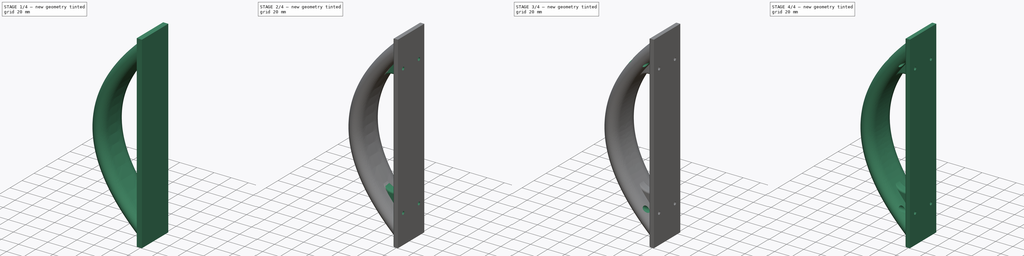
[diagram: build sequence overview — one tinted view per stage of 4, left to right]
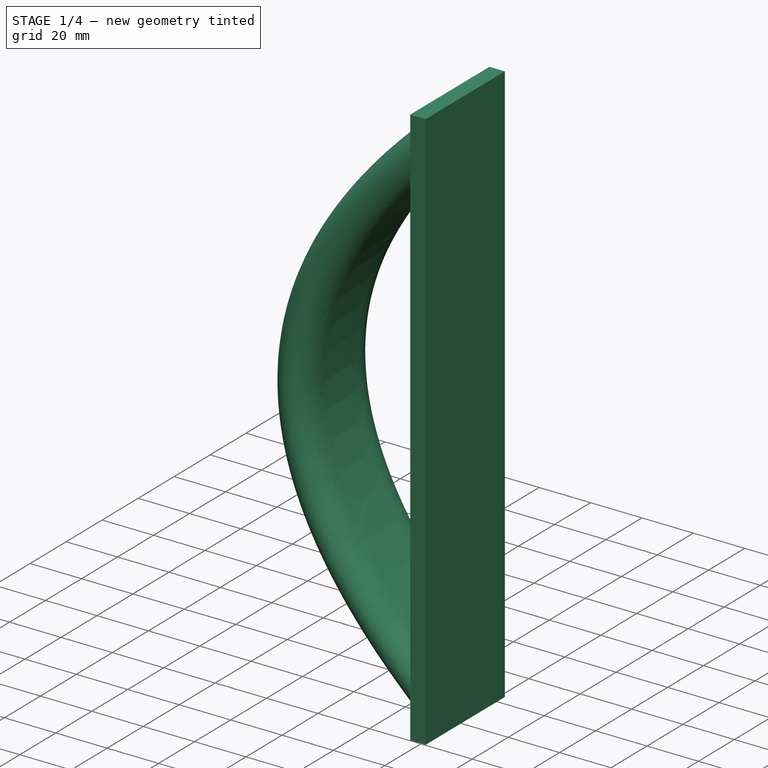
[diagram: stage 1 of 4 — iso view after this stage's code; geometry added in this stage tinted green]
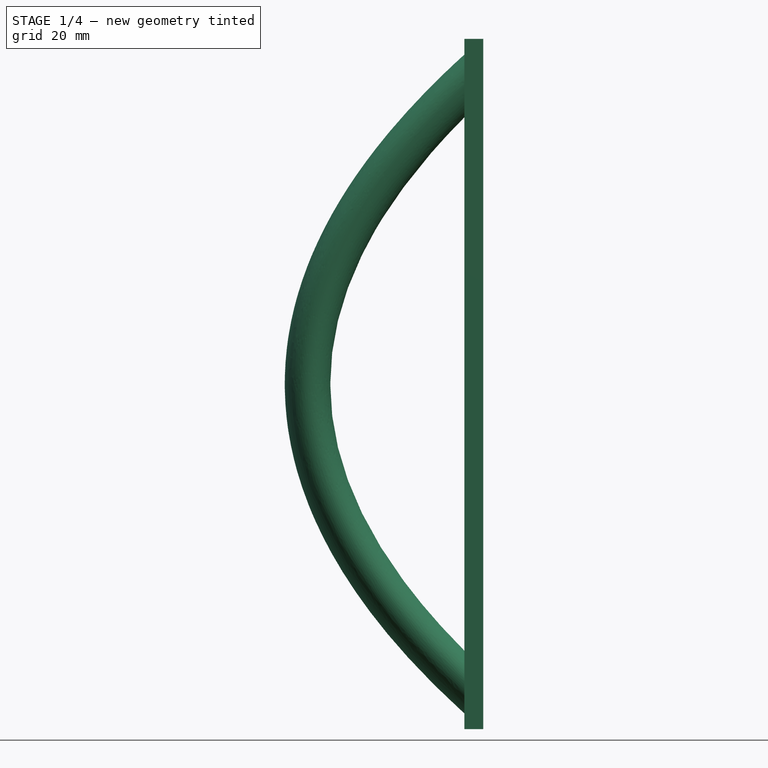
[diagram: stage 1 of 4 — front view after this stage's code; geometry added in this stage tinted green]
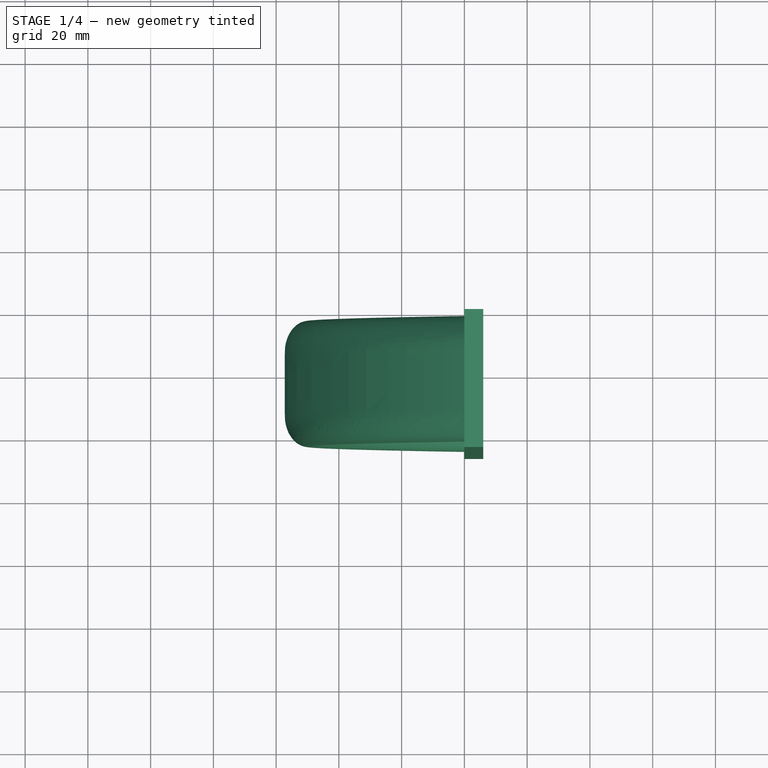
[diagram: stage 1 of 4 — top view after this stage's code; geometry added in this stage tinted green]
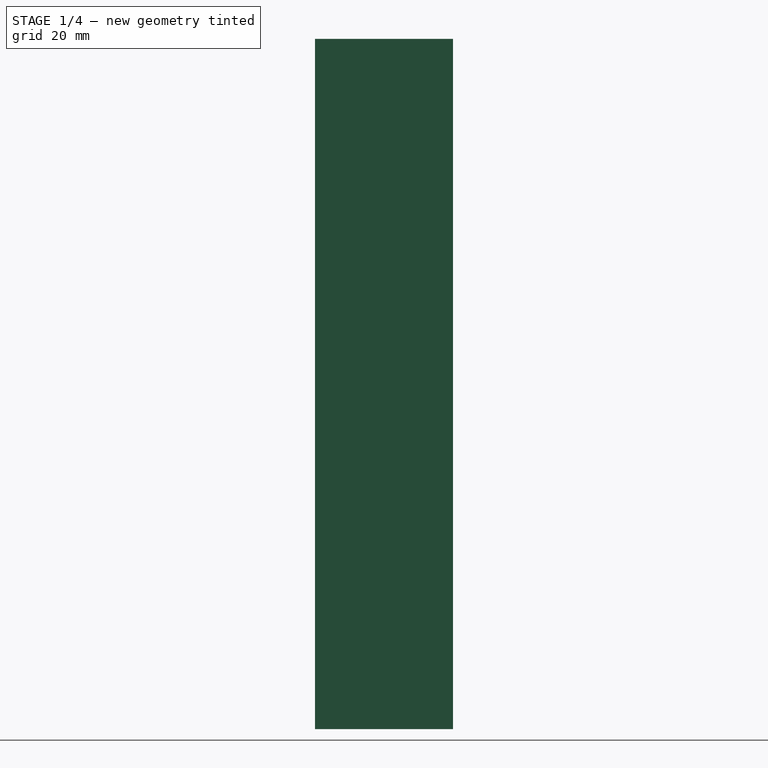
[diagram: stage 1 of 4 — right view after this stage's code; geometry added in this stage tinted green]
FCSTD DOCUMENT  (FreeCAD 1.0R39109 (Git))
Label: windows
License: All rights reserved
objects: Sketcher::SketchObject×8, Part::FeaturePython×3, PartDesign::Plane×2, PartDesign::Pad×2, PartDesign::Pocket×2, PartDesign::AdditivePipe×1, PartDesign::Fillet×1, PartDesign::Hole×1, PartDesign::Body×1, App::DocumentObjectGroup×1
note: 43 computed .brp shape members not serialized (recipe doc carries the construction recipe); baked Part::Feature solids carry a one-line shape summary decoded from their .brp

FEATURE [Sketcher::SketchObject] Sketch  label="base"
  ArcFitTolerance = 1e-06
  AttachmentSupport = -> [YZ_Plane]
  FullyConstrained = false
  MakeInternals = false
  MapMode = 5
  Placement = pos=(0,0,0) rot=(0.57735,0.57735,0.57735;2.0944rad)
  sketch-geometry (4):
    g0: LineSegment StartX=54.1679 StartY=257.934 StartZ=0 EndX=54.1679 EndY=37.9343 EndZ=0
    g1: LineSegment StartX=54.1679 StartY=37.9343 StartZ=0 EndX=98.1679 EndY=37.9343 EndZ=0
    g2: LineSegment StartX=98.1679 StartY=37.9343 StartZ=0 EndX=98.1679 EndY=257.934 EndZ=0
    g3: LineSegment StartX=98.1679 StartY=257.934 StartZ=0 EndX=54.1679 EndY=257.934 EndZ=0
  constraints (10):
    c: Coincident(g0,g1)
    c: Coincident(g1,g2)
    c: Coincident(g2,g3)
    c: Coincident(g3,g0)
    c: Vertical(g0)
    c: Vertical(g2)
    c: Horizontal(g1)
    c: Horizontal(g3)
    c: DistanceY(g0,g0) = 220
    c: DistanceX(g3,g3) = 44
FEATURE [Sketcher::SketchObject] Sketch001  label="origin section"
  ArcFitTolerance = 1e-06
  AttachmentSupport = -> [YZ_Plane]
  ExternalGeometry = -> [Sketch]
  FullyConstrained = true
  MakeInternals = false
  MapMode = 5
  Placement = pos=(0,0,0) rot=(0.57735,0.57735,0.57735;2.0944rad)
  sketch-geometry (7):
    g0: ArcOfCircle CenterX=66.1679 CenterY=242.934 CenterZ=0 NormalX=0 NormalY=0 NormalZ=1 AngleXU=0 Radius=10 StartAngle=1.5708 EndAngle=4.71239
    g1: ArcOfCircle CenterX=86.1679 CenterY=242.934 CenterZ=0 NormalX=0 NormalY=0 NormalZ=1 AngleXU=0 Radius=10 StartAngle=4.71239 EndAngle=7.85398
    g2: LineSegment StartX=66.1679 StartY=252.934 StartZ=0 EndX=86.1679 EndY=252.934 EndZ=0
    g3: LineSegment StartX=66.1679 StartY=232.934 StartZ=0 EndX=86.1679 EndY=232.934 EndZ=0
    g4: LineSegment [constr] StartX=76.1679 StartY=252.934 StartZ=0 EndX=76.1679 EndY=232.934 EndZ=0
    g5: LineSegment [constr] StartX=76.1679 StartY=242.934 StartZ=0 EndX=86.1679 EndY=242.934 EndZ=0
    g6: GeomPoint X=76.1679 Y=242.934 Z=0
  constraints (16):
    c: Tangent(g0,g2) = 1.5708
    c: Tangent(g0,g3) = -1.5708
    c: Tangent(g1,g2) = 1.5708
    c: Tangent(g1,g3) = -1.5708
    c: Equal(g0,g1)
    c: Radius(g0) = 10
    c: Distance(g-3,g2) = 5
    c: PointOnObject(g4,g2)
    c: PointOnObject(g4,g3)
    c: Symmetric(g1,g0,g4)
    c: Symmetric(g-3,g-3,g4)
    c: Coincident(g5,g1)
    c: PointOnObject(g5,g4)
    c: Coincident(g6,g5)
    c: Distance(g5,g-3) = 15  'pathdistance'
    c: Distance(g1,g-5) = 2
FEATURE [PartDesign::Plane] DatumPlane
  AttachmentSupport = -> [Sketch001,XZ_Plane]
  Length = 306.722
  MapMode = 6
  Placement = pos=(0,76.1679,242.934) rot=(0.57735,-0.57735,0.57735;2.0944rad)
  ResizeMode = 0
  Width = 73.788
FEATURE [Sketcher::SketchObject] Sketch002  label="path"
  ArcFitTolerance = 1e-06
  AttachmentSupport = -> [DatumPlane]
  ExternalGeometry = -> [Sketch]
  FullyConstrained = true
  MakeInternals = false
  MapMode = 5
  Placement = pos=(0,76.1679,242.934) rot=(0.57735,-0.57735,0.57735;2.0944rad)
  expr: Constraints[1] = <<origin section>>.Constraints.pathdistance
  sketch-geometry (8):
    g0: LineSegment [constr] StartX=-205 StartY=0 StartZ=0 EndX=-190 EndY=0 EndZ=0
    g1: LineSegment [constr] StartX=-95 StartY=100 StartZ=0 EndX=-95 EndY=0 EndZ=0
    g2: Circle [constr] CenterX=-190 CenterY=0 CenterZ=0 NormalX=0 NormalY=0 NormalZ=1 AngleXU=0 Radius=1
    g3: Circle [constr] CenterX=-95 CenterY=100 CenterZ=0 NormalX=0 NormalY=0 NormalZ=1 AngleXU=0 Radius=1
    g4: Circle [constr] CenterX=0 CenterY=0 CenterZ=0 NormalX=0 NormalY=0 NormalZ=1 AngleXU=0 Radius=1
    g5: BSplineCurve PolesCount=3 KnotsCount=2 Degree=2 IsPeriodic=0
    g6: GeomPoint [constr] X=-190 Y=0 Z=0
    g7: GeomPoint [constr] X=0 Y=0 Z=0
  constraints (17):
    c: Coincident(g0,g-3)
    c: DistanceX(g0,g0) = 15
    c: PointOnObject(g0,g-3)
    c: Symmetric(g0,g-3,g1)
    c: PointOnObject(g1,g-3)
    c: DistanceY(g1,g1) = 100
    c: Weight(g2) = 1
    c: Equal(g2,g3)
    c: Equal(g2,g4)
    c: InternalAlignment(g2,g5)
    c: InternalAlignment(g3,g5)
    c: InternalAlignment(g4,g5)
    c: InternalAlignment(g6,g5)
    c: InternalAlignment(g7,g5)
    c: Coincident(g2,g0)
    c: Coincident(g3,g1)
    c: Coincident(g4,g-1)
FEATURE [Sketcher::SketchObject] Sketch003  label="dest section"
  ArcFitTolerance = 1e-06
  AttachmentSupport = -> [YZ_Plane]
  ExternalGeometry = -> [Sketch,Sketch002]
  FullyConstrained = true
  MakeInternals = false
  MapMode = 5
  Placement = pos=(0,0,0) rot=(0.57735,0.57735,0.57735;2.0944rad)
  sketch-geometry (6):
    g0: ArcOfCircle CenterX=66.1679 CenterY=52.9343 CenterZ=0 NormalX=0 NormalY=0 NormalZ=1 AngleXU=0 Radius=10 StartAngle=1.5708 EndAngle=4.71239
    g1: ArcOfCircle CenterX=86.1679 CenterY=52.9343 CenterZ=0 NormalX=0 NormalY=0 NormalZ=1 AngleXU=0 Radius=10 StartAngle=4.71239 EndAngle=7.85398
    g2: LineSegment StartX=66.1679 StartY=62.9343 StartZ=0 EndX=86.1679 EndY=62.9343 EndZ=0
    g3: LineSegment StartX=66.1679 StartY=42.9343 StartZ=0 EndX=86.1679 EndY=42.9343 EndZ=0
    g4: LineSegment [constr] StartX=66.1679 StartY=52.9343 StartZ=0 EndX=86.1679 EndY=52.9343 EndZ=0
    g5: LineSegment [constr] StartX=76.1679 StartY=62.9343 StartZ=0 EndX=76.1679 EndY=52.9343 EndZ=0
  constraints (14):
    c: Tangent(g0,g2) = 1.5708
    c: Tangent(g0,g3) = -1.5708
    c: Tangent(g1,g2) = 1.5708
    c: Tangent(g1,g3) = -1.5708
    c: Equal(g0,g1)
    c: Radius(g0) = 10
    c: Horizontal(g2)
    c: Distance(g-3,g3) = 5
    c: Coincident(g4,g0)
    c: Coincident(g4,g1)
    c: Symmetric(g2,g2,g5)
    c: Vertical(g5)
    c: Coincident(g5,g-4)
    c: Distance(g1,g-5) = 2
FEATURE [PartDesign::AdditivePipe] AdditivePipe  label="handle"
  AuxilleryCurvelinear = true
  AuxillerySpineTangent = false
  Binormal = (0,0,0)
  Mode = 0
  Placement = pos=(0,0,0) rot=(1,1,1;2.0944rad)
  Profile = -> Sketch001
  Refine = true
  Sections = -> [Sketch003]
  Spine = -> Sketch002 [Edge1]
  SpineTangent = false
  Suppressed = false
  Transformation = 1
  Transition = 0
FEATURE [PartDesign::Pad] Pad  label="base pad"
  BaseFeature = -> AdditivePipe
  Direction = (1,0,0)
  Length = 6
  Length2 = 10
  Placement = pos=(0,0,0) rot=(1,1,1;2.0944rad)
  Profile = -> Sketch
  ReferenceAxis = -> Sketch [N_Axis]
  Refine = true
  Suppressed = false
  Type = 0
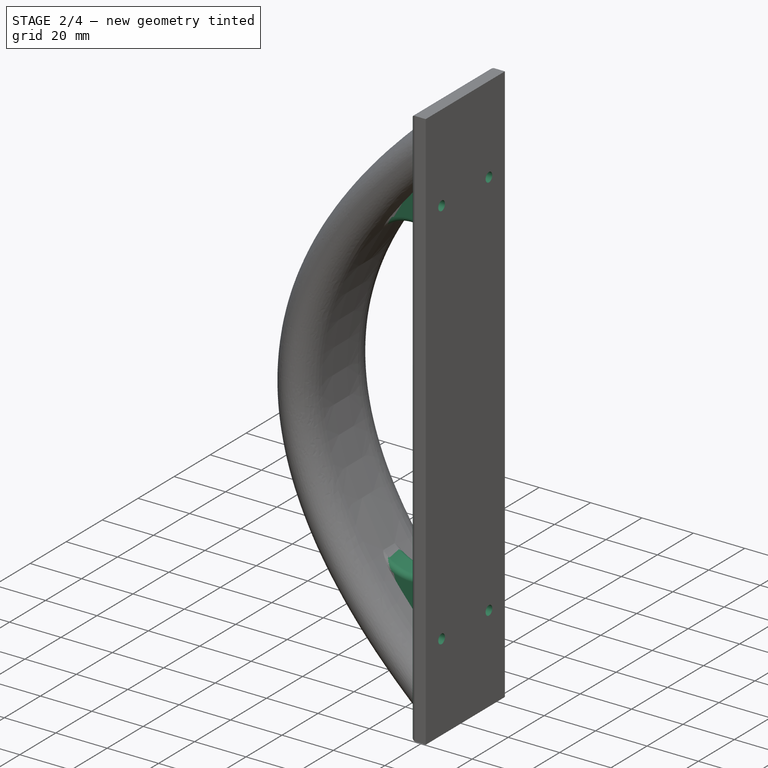
[diagram: stage 2 of 4 — iso view after this stage's code; geometry added in this stage tinted green]
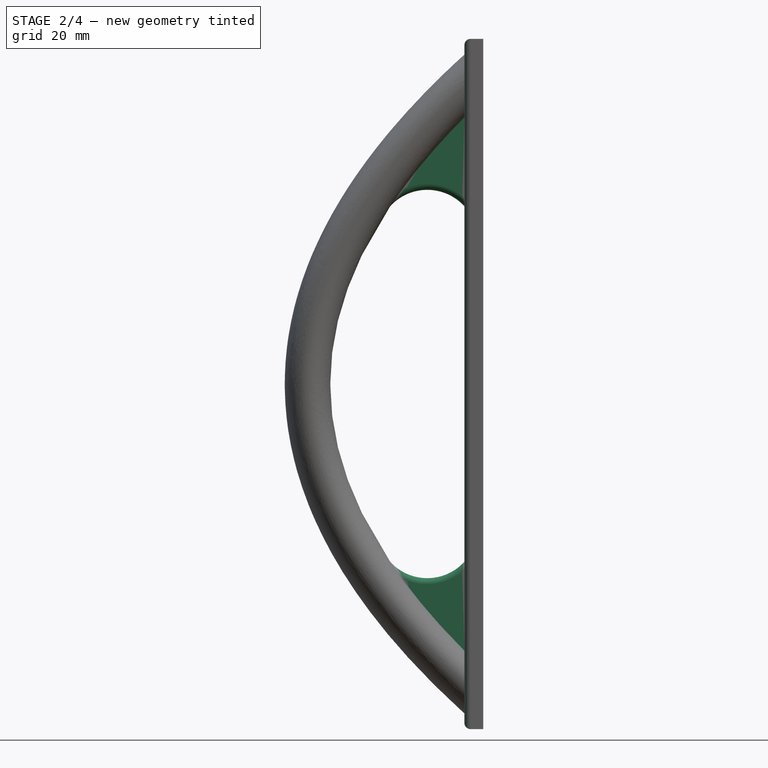
[diagram: stage 2 of 4 — front view after this stage's code; geometry added in this stage tinted green]
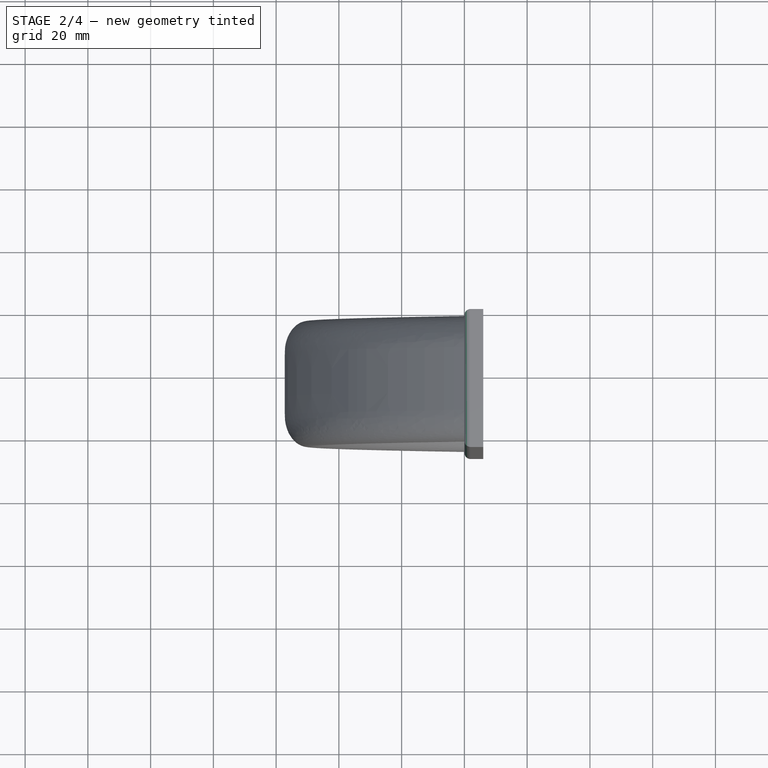
[diagram: stage 2 of 4 — top view after this stage's code; geometry added in this stage tinted green]
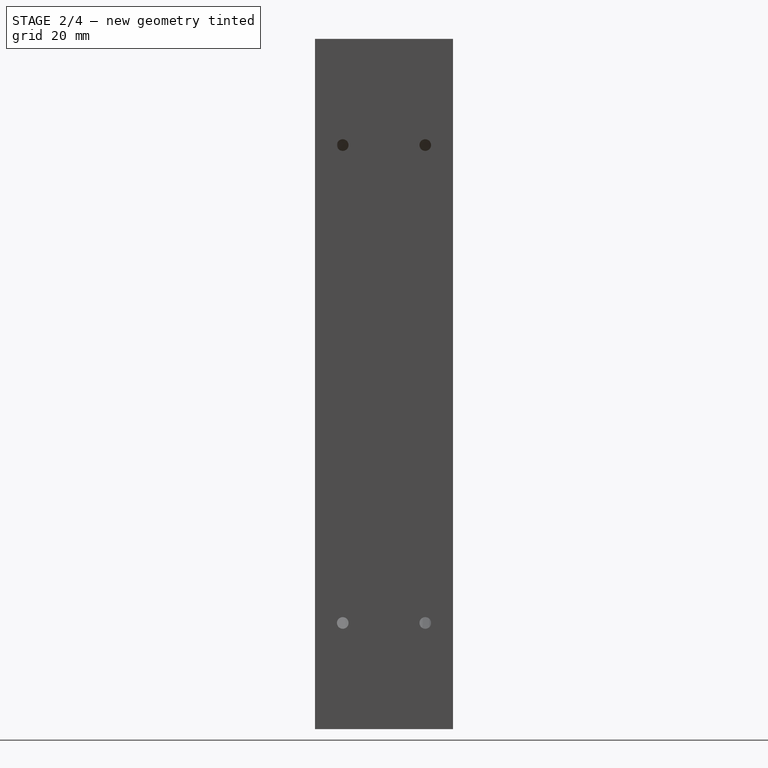
[diagram: stage 2 of 4 — right view after this stage's code; geometry added in this stage tinted green]
FEATURE [Sketcher::SketchObject] Sketch005
  ArcFitTolerance = 1e-06
  AttachmentSupport = -> [DatumPlane]
  FullyConstrained = false
  MakeInternals = false
  MapMode = 5
  Placement = pos=(0,76.1679,242.934) rot=(0.57735,-0.57735,0.57735;2.0944rad)
  sketch-geometry (7):
    g0: LineSegment StartX=-151.638 StartY=23.6665 StartZ=0 EndX=-187.627 EndY=3.91e-14 EndZ=0
    g1: LineSegment StartX=-187.627 StartY=3.91e-14 StartZ=0 EndX=-151.638 EndY=6.04e-14 EndZ=0
    g2: LineSegment [constr] StartX=-95 StartY=35.6394 StartZ=0 EndX=-95 EndY=-32.879 EndZ=0
    g3: ArcOfCircle CenterX=-140.894 CenterY=11.8332 CenterZ=0 NormalX=0 NormalY=0 NormalZ=1 AngleXU=0 Radius=15.983 StartAngle=2.30798 EndAngle=3.97521
    g4: ArcOfCircle CenterX=-49.1061 CenterY=11.8332 CenterZ=0 NormalX=0 NormalY=0 NormalZ=1 AngleXU=0 Radius=15.983 StartAngle=5.44957 EndAngle=7.1168
    g5: LineSegment StartX=-38.3623 StartY=23.6665 StartZ=0 EndX=-2.37336 EndY=2.025e-13 EndZ=0
    g6: LineSegment StartX=-2.37336 StartY=2.025e-13 StartZ=0 EndX=-38.3623 EndY=1.51e-13 EndZ=0
  constraints (7):
    c: Coincident(g1,g0)
    c: Vertical(g0,g1)
    c: Coincident(g3,g1)
    c: Coincident(g3,g0)
    c: Coincident(g6,g5)
    c: Coincident(g4,g6)
    c: Coincident(g4,g5)
FEATURE [PartDesign::Pad] Pad002  label="strenght for the handle"
  BaseFeature = -> Pad
  Direction = (0,-1,0)
  Length = 10
  Length2 = 10
  Midplane = true
  Placement = pos=(0,0,0) rot=(1,1,1;2.0944rad)
  Profile = -> Sketch005
  ReferenceAxis = -> Sketch005 [N_Axis]
  Refine = true
  Suppressed = false
  Type = 0
FEATURE [PartDesign::Fillet] Fillet
  Base = -> Pad002 [Edge3,Edge6,Edge11,Edge9,Edge41,Edge42,Edge40,Edge39]
  BaseFeature = -> Pad002
  Placement = pos=(0,0,0) rot=(1,1,1;2.0944rad)
  Radius = 2
  Refine = true
  SupportTransform = false
  Suppressed = false
  UseAllEdges = false
FEATURE [Sketcher::SketchObject] Sketch006
  ArcFitTolerance = 1e-06
  AttachmentSupport = -> [Fillet]
  ExternalGeometry = -> [Fillet]
  FullyConstrained = true
  MakeInternals = false
  MapMode = 5
  Placement = pos=(0,0,0) rot=(0.57735,0.57735,-0.57735;4.18879rad)
  sketch-geometry (10):
    g0: LineSegment [constr] StartX=56.1679 StartY=-39.9343 StartZ=0 EndX=56.1679 EndY=-255.934 EndZ=0
    g1: LineSegment [constr] StartX=56.1679 StartY=-255.934 StartZ=0 EndX=96.1679 EndY=-255.934 EndZ=0
    g2: LineSegment [constr] StartX=96.1679 StartY=-255.934 StartZ=0 EndX=96.1679 EndY=-39.9343 EndZ=0
    g3: LineSegment [constr] StartX=96.1679 StartY=-39.9343 StartZ=0 EndX=56.1679 EndY=-39.9343 EndZ=0
    g4: Circle CenterX=63.0179 CenterY=-224.084 CenterZ=0 NormalX=0 NormalY=0 NormalZ=1 AngleXU=0 Radius=1.85
    g5: Circle CenterX=89.3179 CenterY=-224.084 CenterZ=0 NormalX=0 NormalY=0 NormalZ=1 AngleXU=0 Radius=1.85
    g6: Circle CenterX=63.0179 CenterY=-71.7843 CenterZ=0 NormalX=0 NormalY=0 NormalZ=1 AngleXU=0 Radius=1.85
    g7: Circle CenterX=89.3179 CenterY=-71.7843 CenterZ=0 NormalX=0 NormalY=0 NormalZ=1 AngleXU=0 Radius=1.85
    g8: LineSegment [constr] StartX=56.1679 StartY=-147.934 StartZ=0 EndX=96.1679 EndY=-147.934 EndZ=0
    g9: LineSegment [constr] StartX=76.1679 StartY=-39.9343 StartZ=0 EndX=76.1679 EndY=-255.934 EndZ=0
  constraints (24):
    c: Coincident(g0,g1)
    c: Coincident(g1,g2)
    c: Coincident(g2,g3)
    c: Coincident(g3,g0)
    c: Vertical(g0)
    c: Vertical(g2)
    c: Horizontal(g1)
    c: Horizontal(g3)
    c: Coincident(g0,g-3)
    c: Coincident(g1,g-4)
    c: Diameter(g4) = 3.7
    c: Symmetric(g0,g0,g8)
    c: Symmetric(g2,g2,g8)
    c: Symmetric(g3,g3,g9)
    c: PointOnObject(g9,g1)
    c: Vertical(g9)
    c: Symmetric(g5,g4,g9)
    c: Symmetric(g4,g6,g8)
    c: Symmetric(g6,g7,g9)
    c: Equal(g5,g4)
    c: Equal(g4,g6)
    c: Equal(g6,g7)
    c: Distance(g4,g1) = 30
    c: Distance(g4,g0) = 5
FEATURE [PartDesign::Hole] Hole
  BaseFeature = -> Fillet
  CustomThreadClearance = 0
  Depth = 25
  DepthType = 0
  Diameter = 3.7
  DrillForDepth = false
  DrillPoint = 1
  DrillPointAngle = 118
  HoleCutCountersinkAngle = 90
  HoleCutCustomValues = false
  HoleCutDepth = 0
  HoleCutDiameter = 6.1
  HoleCutType = 2
  ModelThread = false
  Placement = pos=(0,0,0) rot=(1,1,1;2.0944rad)
  Profile = -> Sketch006
  Refine = true
  Suppressed = false
  Tapered = false
  TaperedAngle = 90
  ThreadClass = 0
  ThreadDepth = 25
  ThreadDepthType = 0
  ThreadDirection = 0
  ThreadFit = 0
  ThreadSize = 0
  ThreadType = 0
  Threaded = false
  UseCustomThreadClearance = false
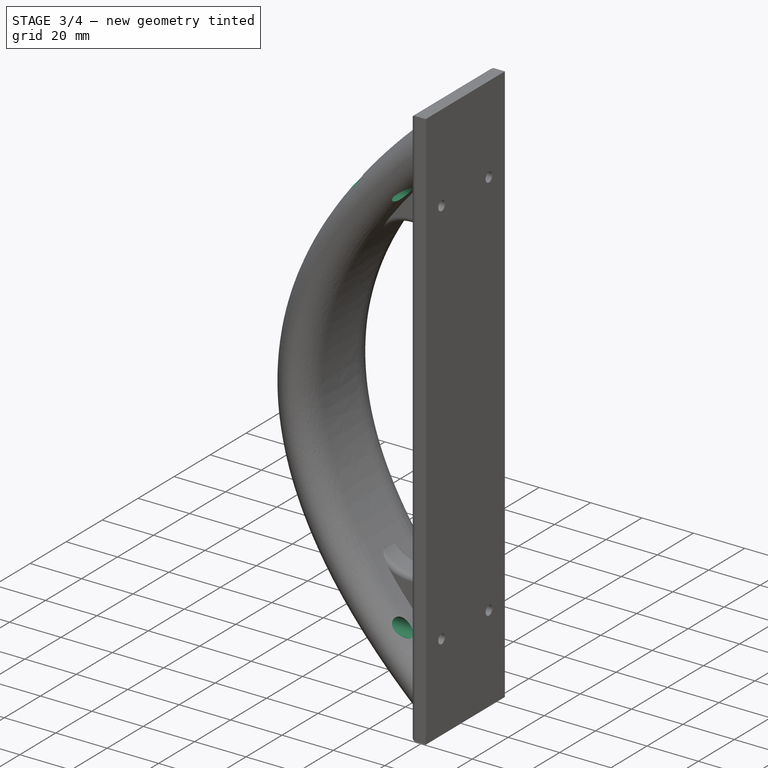
[diagram: stage 3 of 4 — iso view after this stage's code; geometry added in this stage tinted green]
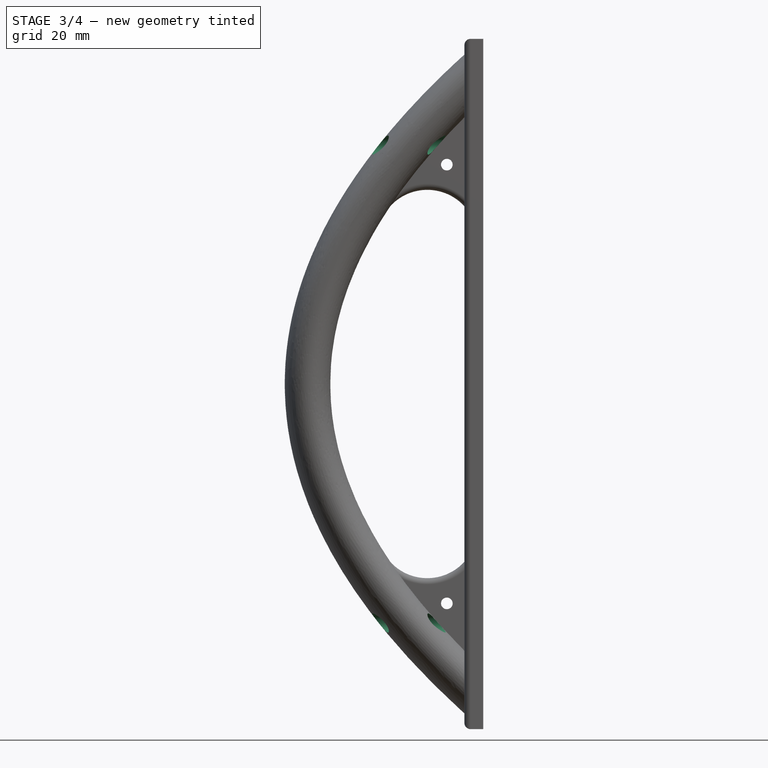
[diagram: stage 3 of 4 — front view after this stage's code; geometry added in this stage tinted green]
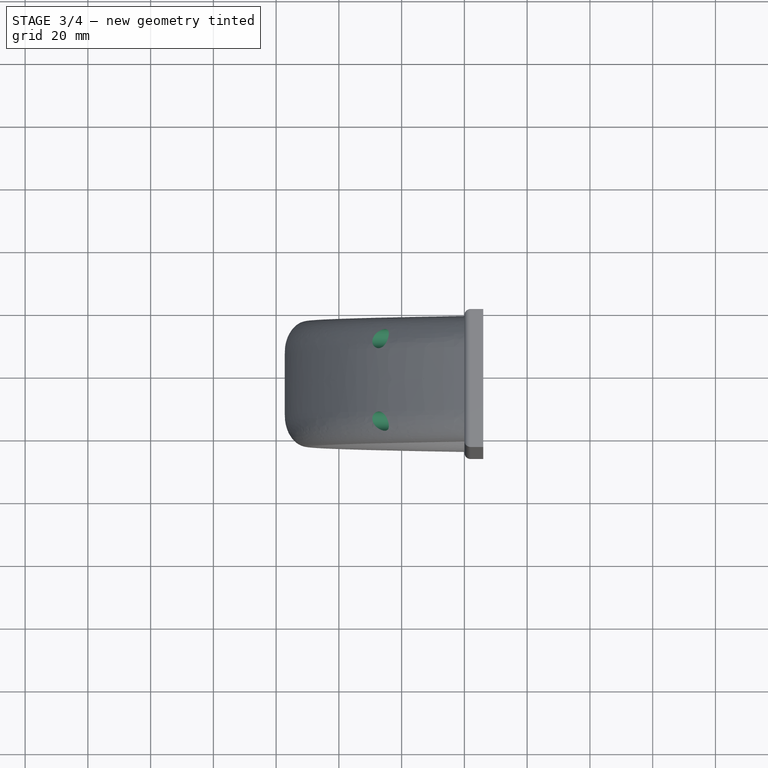
[diagram: stage 3 of 4 — top view after this stage's code; geometry added in this stage tinted green]
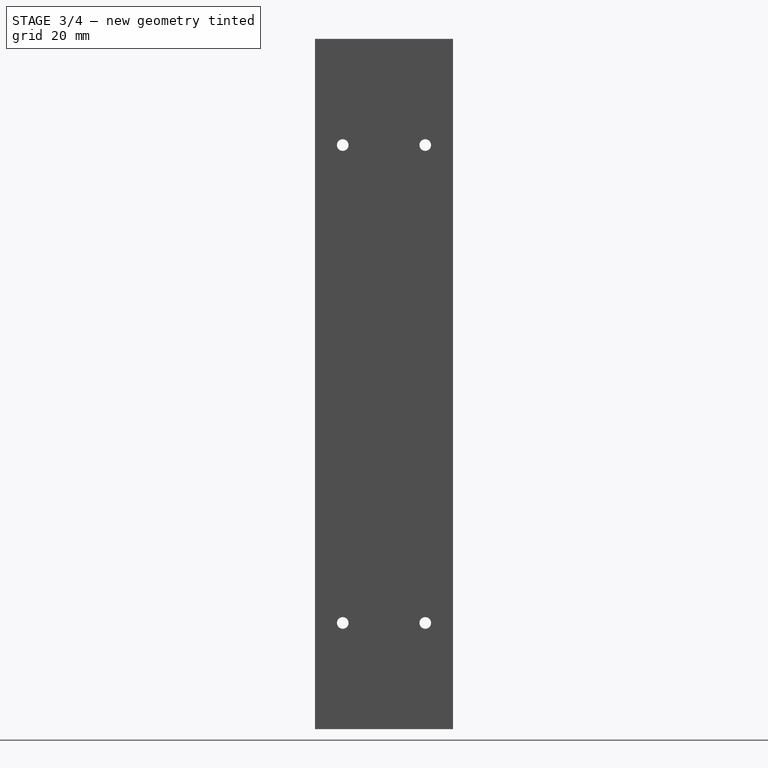
[diagram: stage 3 of 4 — right view after this stage's code; geometry added in this stage tinted green]
FEATURE [PartDesign::Pocket] Pocket
  BaseFeature = -> Hole
  Direction = (-1,0,-3e-16)
  Length = 5
  Length2 = 5
  Placement = pos=(0,0,0) rot=(1,1,1;2.0944rad)
  Profile = -> Hole [Edge47,Edge25,Edge24,Edge46]
  Refine = true
  Suppressed = false
  Type = 1
FEATURE [Sketcher::SketchObject] Sketch007
  ArcFitTolerance = 1e-06
  AttachmentSupport = -> [Pocket]
  ExternalGeometry = -> [Pocket]
  FullyConstrained = false
  MakeInternals = false
  MapMode = 5
  Placement = pos=(0,81.1679,-5.41e-14) rot=(0.57735,0.57735,0.57735;4.18879rad)
  sketch-geometry (4):
    g0: LineSegment [constr] StartX=147.934 StartY=43.2549 StartZ=0 EndX=147.934 EndY=-88.2897 EndZ=0
    g1: Circle CenterX=78.0231 CenterY=-5.59978 CenterZ=0 NormalX=0 NormalY=0 NormalZ=1 AngleXU=0 Radius=1.85
    g2: Circle CenterX=217.845 CenterY=-5.59978 CenterZ=0 NormalX=0 NormalY=0 NormalZ=1 AngleXU=0 Radius=1.85
    g3: LineSegment [constr] StartX=147.934 StartY=43.2549 StartZ=0 EndX=147.934 EndY=-88.2897 EndZ=0
  constraints (4):
    c: Symmetric(g-3,g-3,g0)
    c: Symmetric(g1,g2,g0)
    c: Diameter(g1) = 3.7
    c: Equal(g1,g2)
FEATURE [PartDesign::Pocket] Pocket001
  BaseFeature = -> Pocket
  Direction = (0,-1,0)
  Length = 5
  Length2 = 5
  Placement = pos=(0,0,0) rot=(1,1,1;2.0944rad)
  Profile = -> Sketch007
  ReferenceAxis = -> Sketch007 [N_Axis]
  Refine = true
  Suppressed = false
  Type = 1
FEATURE [Sketcher::SketchObject] Sketch008
  ArcFitTolerance = 1e-06
  AttachmentSupport = -> [Pocket001]
  ExternalGeometry = -> [Pocket001]
  FullyConstrained = false
  MakeInternals = false
  MapMode = 5
  Placement = pos=(-1.493e-13,0,0) rot=(0.57735,0.57735,-0.57735;4.18879rad)
  sketch-geometry (2):
    g0: LineSegment [constr] StartX=76.1679 StartY=-236.709 StartZ=0 EndX=76.1679 EndY=-257.934 EndZ=0
    g1: GeomPoint X=76.1679 Y=-257.934 Z=0
  constraints (3):
    c: Symmetric(g-3,g-3,g0)
    c: PointOnObject(g0,g-3)
    c: Coincident(g1,g0)
FEATURE [PartDesign::Plane] DatumPlane001
  AttachmentSupport = -> [Sketch008,Pocket001]
  Length = 306.722
  MapMode = 6
  Placement = pos=(-1.493e-13,76.1679,257.934) rot=(0.57735,0.57735,0.57735;4.18879rad)
  ResizeMode = 0
  Width = 73.788
FEATURE [PartDesign::Body] Body  label="knob"
  AllowCompound = false
  Group = -> [Sketch,Sketch001,DatumPlane,Sketch002,Sketch003,AdditivePipe,Pad,Sketch005,Pad002,Fillet,Sketch006,Hole,Pocket,Sketch007,Pocket001,Sketch008,DatumPlane001]
  Origin = -> Origin
  Tip = -> Pocket001
FEATURE [Part::FeaturePython] Slice  # WARN: FeaturePython — macro-defined, semantics opaque (R4)
  Base = -> Pocket001
  Mode = 1
  Tolerance = 0
  Tools = -> [DatumPlane001]
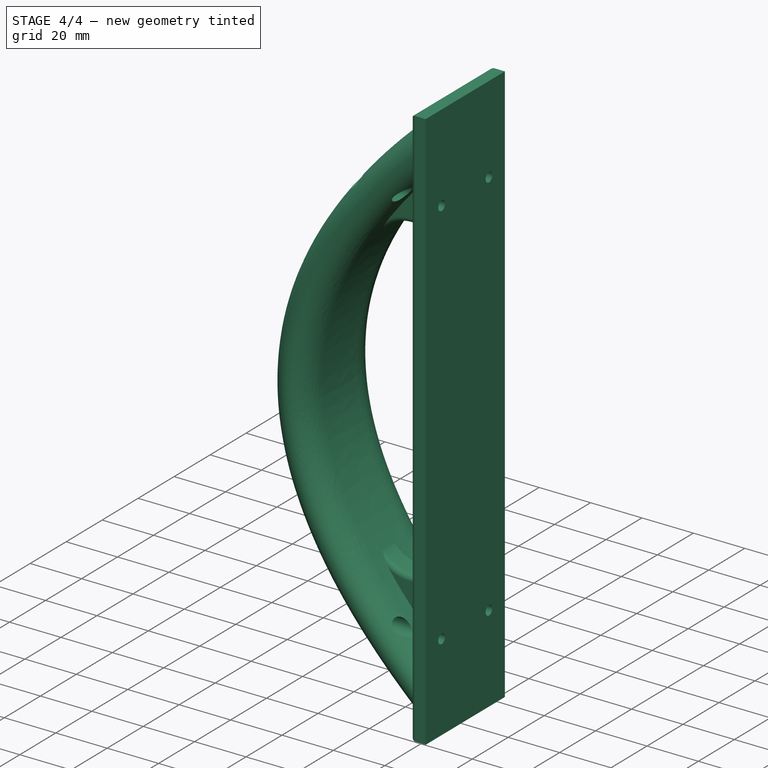
[diagram: stage 4 of 4 — iso view after this stage's code; geometry added in this stage tinted green]
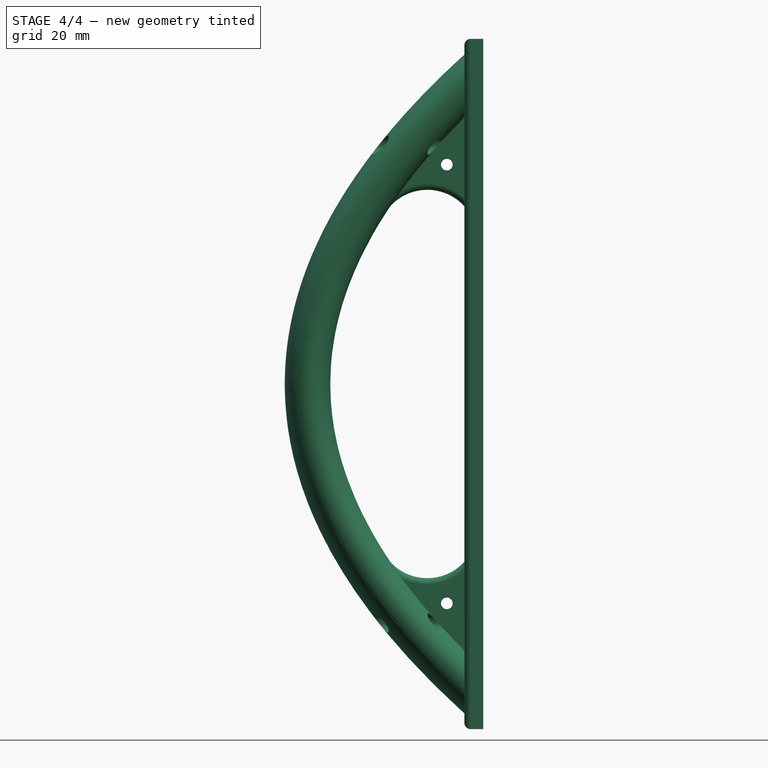
[diagram: stage 4 of 4 — front view after this stage's code; geometry added in this stage tinted green]
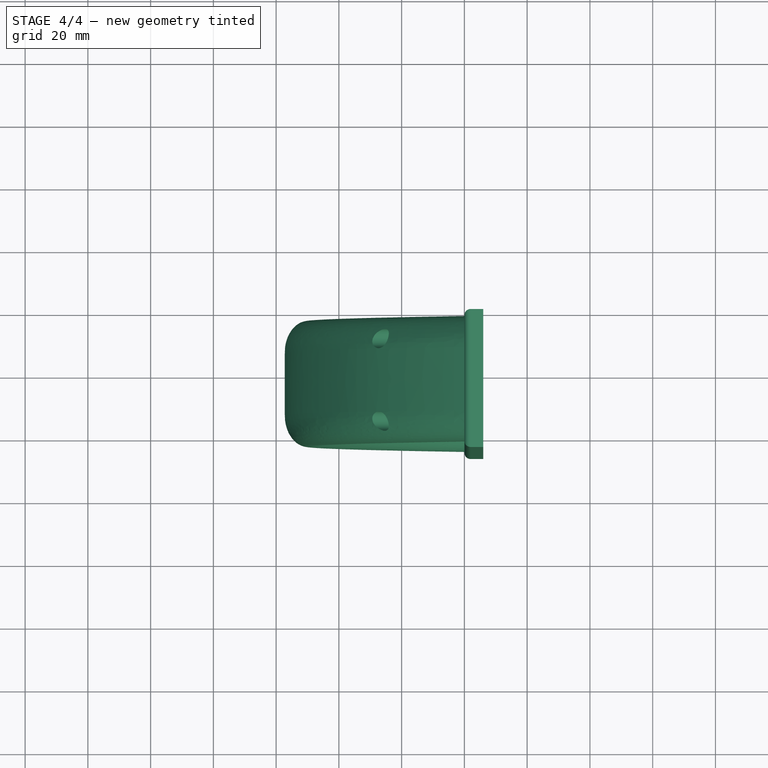
[diagram: stage 4 of 4 — top view after this stage's code; geometry added in this stage tinted green]
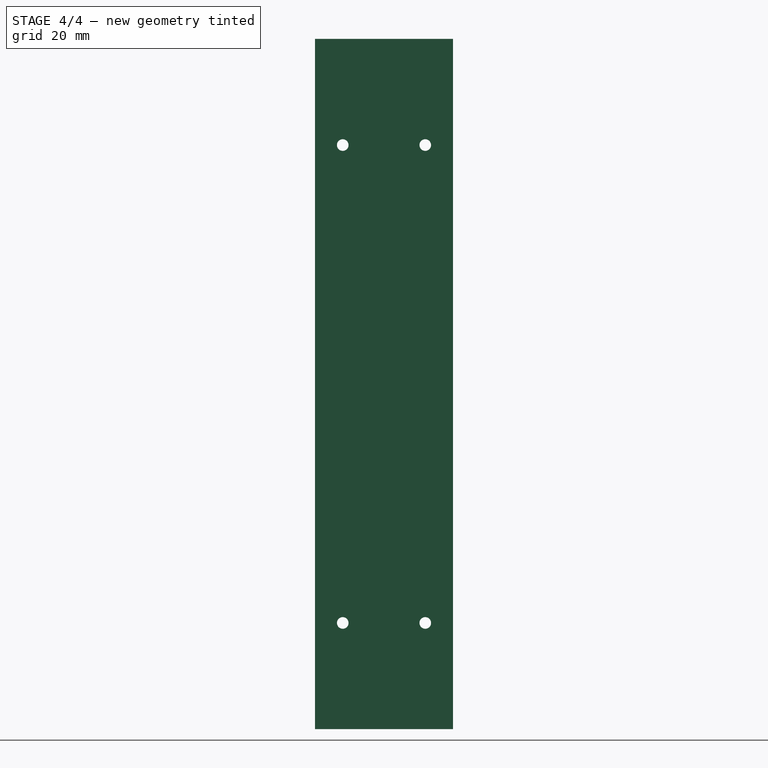
[diagram: stage 4 of 4 — right view after this stage's code; geometry added in this stage tinted green]
FEATURE [Part::FeaturePython] Slice_child0  label="Slice.0"  # WARN: FeaturePython — macro-defined, semantics opaque (R4)
  Base = -> Slice
  FilterType = 1
  Invert = false
  OverrideMaxVal = 0
  WindowFrom = 80
  WindowTo = 100
  items = 0
FEATURE [Part::FeaturePython] Slice_child1  label="Slice.1"  # WARN: FeaturePython — macro-defined, semantics opaque (R4)
  Base = -> Slice
  FilterType = 1
  Invert = false
  OverrideMaxVal = 0
  WindowFrom = 80
  WindowTo = 100
  items = 1
FEATURE [App::DocumentObjectGroup] GrExplode_Slice  label="Exploded Slice"
  Group = -> [Slice_child0,Slice_child1]
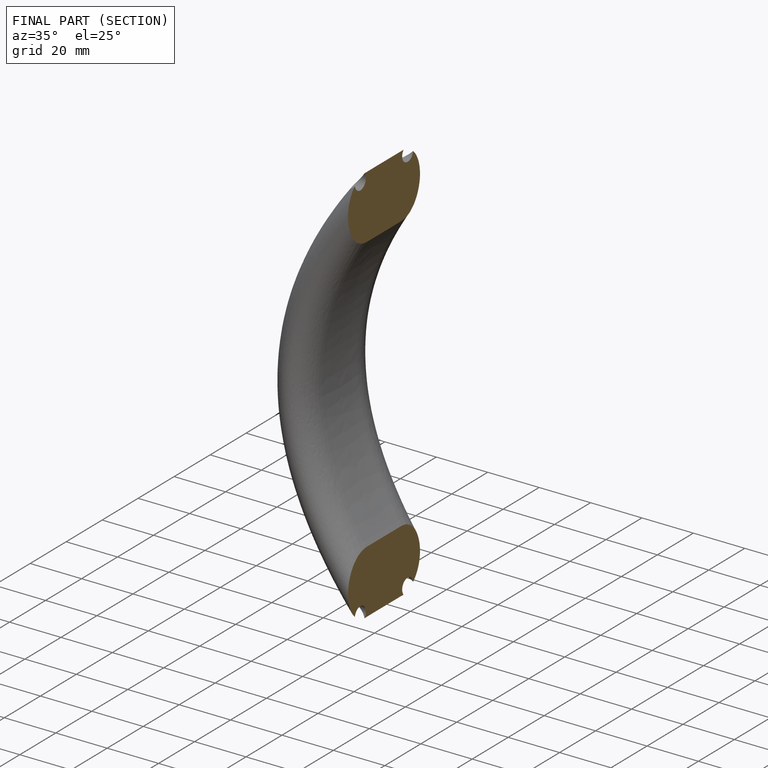
[diagram: finished part — half-section view (interior)]
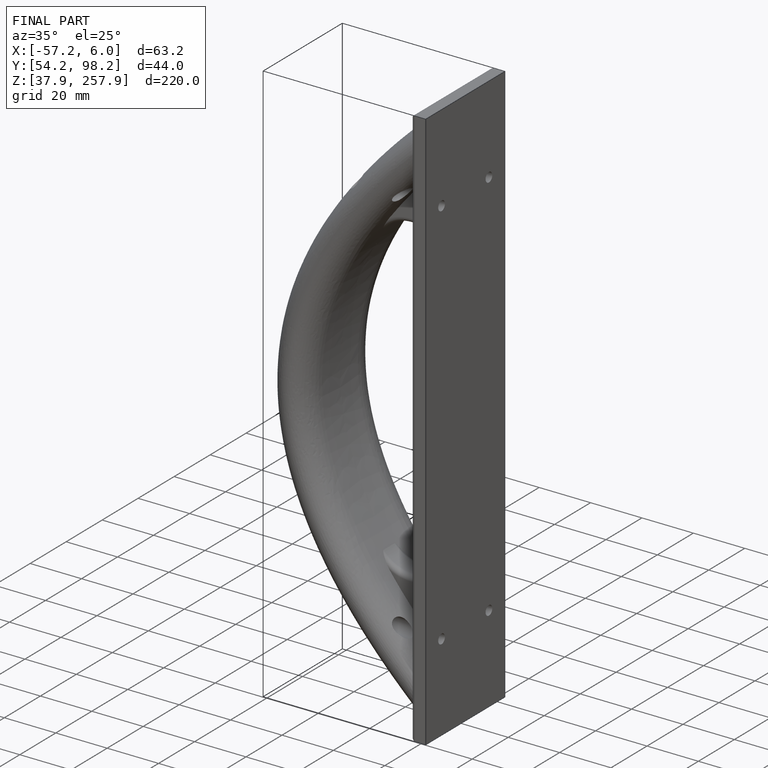
[diagram: finished part — iso view with bounding-box wireframe]
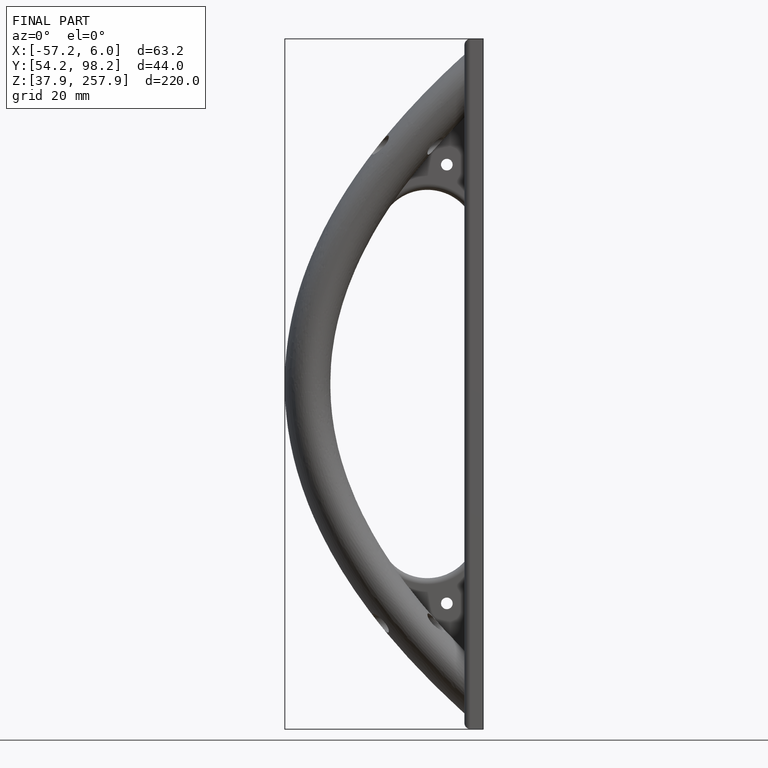
[diagram: finished part — front view with bounding-box wireframe]
